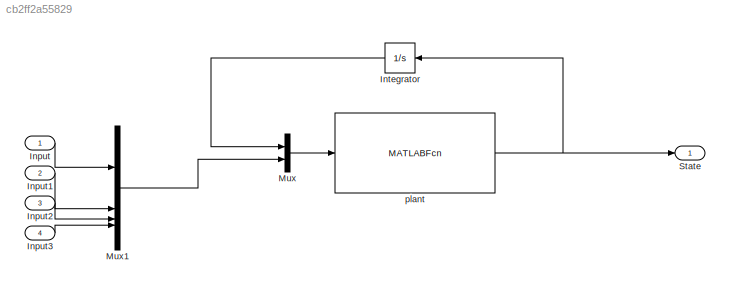
MODEL slx_cb2ff2a55829
KIND model
CONFIG AbsTol = auto
CONFIG EnableMultiTasking = off
CONFIG FixedStep = auto
CONFIG MaxStep = auto
CONFIG MinStep = auto
CONFIG RelTol = 1e-3
CONFIG SampleTimeConstraint = Unconstrained
CONFIG SolverName = VariableStepAuto
CONFIG StartTime = 0.0
CONFIG StopTime = 10.0
BLOCK [Inport] Input
BLOCK [Inport] Input1
  Port = 2
BLOCK [Inport] Input2
  Port = 3
BLOCK [Inport] Input3
  Port = 4
BLOCK [Integrator] Integrator
  InitialCondition = X0
  NameLocation = top
BLOCK [Mux] Mux
  DisplayOption = bar
  Inputs = 2
BLOCK [Mux] Mux1
  DisplayOption = bar
BLOCK [Outport] State
BLOCK [MATLABFcn] plant
  MATLABFcn = DroneDynamicModel(u(1:12),u(13:16))
LINE Input1:1 -> Mux1:2
LINE Input2:1 -> Mux1:3
LINE Input3:1 -> Mux1:4
LINE Input:1 -> Mux1:1
LINE Integrator:1 -> Mux:1
LINE Mux1:1 -> Mux:2
LINE Mux:1 -> plant:1
NET plant:1 -> Integrator:1, State:1
note: NET lines group one-source signal fan-out (src -> all destinations, sorted); 1:1 wires keep LINE
